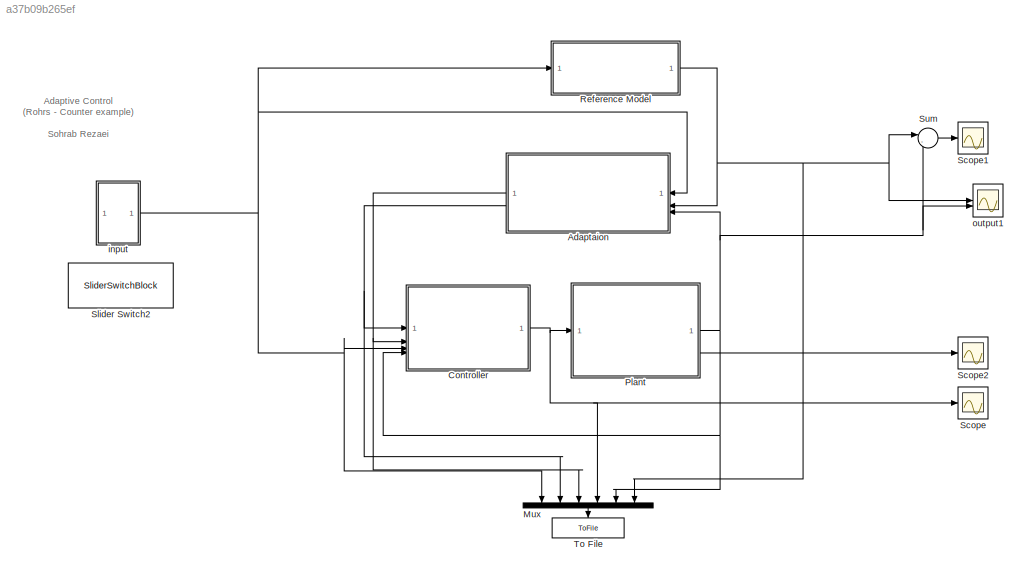
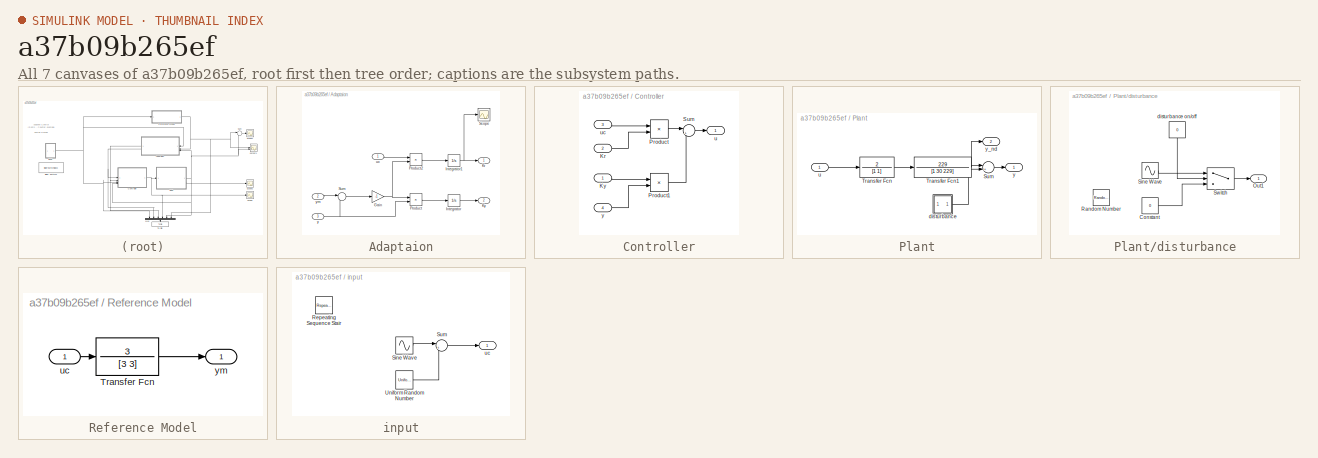
[diagram: thumbnail index - all 7 canvases of the model, root first then tree order]
MODEL slx_a37b09b265ef
KIND model
CONFIG AbsTol = auto
CONFIG EnableMultiTasking = off
CONFIG FixedStep = auto
CONFIG MaxStep = auto
CONFIG MinStep = auto
CONFIG RelTol = 1e-3
CONFIG SampleTimeConstraint = Unconstrained
CONFIG SolverName = VariableStepAuto
CONFIG StartTime = 0.0
CONFIG StopTime = 600
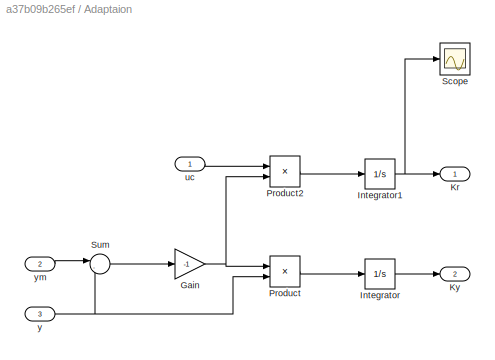
BLOCK [SubSystem] Adaptaion
  NameLocation = top
BLOCK [Gain] Adaptaion/Gain
  Gain = -1
BLOCK [Integrator] Adaptaion/Integrator
BLOCK [Integrator] Adaptaion/Integrator1
BLOCK [Outport] Adaptaion/Kr
BLOCK [Outport] Adaptaion/Ky
  Port = 2
BLOCK [Product] Adaptaion/Product
BLOCK [Product] Adaptaion/Product2
BLOCK [Scope] Adaptaion/Scope
  ActiveDisplayYMaximum = 4.56362
  ActiveDisplayYMinimum = -0.50707
  DataLoggingVariableName = ScopeData3
  Floating = off
  GraphicalSettings = {"GraphicalSettings":{"LegacySettings":true,"Style":{"Style":{"AxesColor":"[0 0 0]","ChannelNames":[""],"ColorOrder":"[1 1 0.0666666666666667;0.0745098039215686 0.623529411764706 1;1 0.411764705882353 0.16078431372549;0.392156862745098 0.831372549019608 0.0745098039215686;0.717647058823529 0.274509803921569 1;0.0588235294117647 1 1;1 0.0745098039215686 0.650980392156863]","CurrentConfiguration":"e...<+425ch>
  MultipleDisplayCache = [{"MaxYLimMag":4.56362,"MaxYLimReal":4.56362,"MinYLimMag":0,"MinYLimReal":-0.50707,"PlotAsMagnitudePhase":false,"ShowGrid":true,"ShowLegend":false,"Title":"%<SignalLabel>","YLabel":""}]
  NumInputPorts = 1
  WasSavedAsWebScope = on
BLOCK [Sum] Adaptaion/Sum
  Inputs = |-+
BLOCK [Inport] Adaptaion/uc
  NameLocation = top
BLOCK [Inport] Adaptaion/y
  NameLocation = top
  Port = 3
BLOCK [Inport] Adaptaion/ym
  NameLocation = top
  Port = 2
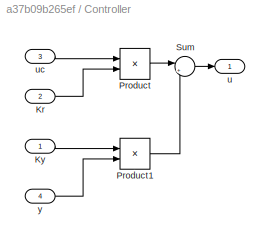
BLOCK [SubSystem] Controller
BLOCK [Inport] Controller/Kr
  Port = 2
BLOCK [Inport] Controller/Ky
BLOCK [Product] Controller/Product
  RndMeth = Zero
BLOCK [Product] Controller/Product1
  RndMeth = Zero
BLOCK [Sum] Controller/Sum
  Inputs = |++
BLOCK [Outport] Controller/u
BLOCK [Inport] Controller/uc
  Port = 3
BLOCK [Inport] Controller/y
  Port = 4
BLOCK [Mux] Mux
  DisplayOption = bar
  Inputs = 6
  NameLocation = left
BLOCK [SubSystem] Plant
BLOCK [Sum] Plant/Sum
  Inputs = |++
BLOCK [TransferFcn] Plant/Transfer Fcn
  Denominator = [1 1]
  Numerator = 2
BLOCK [TransferFcn] Plant/Transfer Fcn1
  Denominator = [1 30 229]
  Numerator = 229
BLOCK [SubSystem] Plant/disturbance
  NameLocation = right
BLOCK [Constant] Plant/disturbance/Constant
  Value = 0
BLOCK [Outport] Plant/disturbance/Out1
BLOCK [RandomNumber] Plant/disturbance/Random Number
  SampleTime = 0.1
BLOCK [Sin] Plant/disturbance/Sine Wave
  Amplitude = 0.01
  Frequency = 10
  SampleTime = 0
BLOCK [Switch] Plant/disturbance/Switch
  Criteria = u2 > Threshold
  InputSameDT = off
  SaturateOnIntegerOverflow = off
BLOCK [Constant] Plant/disturbance/disturbance on//off
  NameLocation = left
  Value = 0
BLOCK [Inport] Plant/u
BLOCK [Outport] Plant/y
BLOCK [Outport] Plant/y_nd
  Port = 2
BLOCK [SubSystem] Reference Model
BLOCK [TransferFcn] Reference Model/Transfer Fcn
  Denominator = [3 3]
  Numerator = 3
BLOCK [Inport] Reference Model/uc
BLOCK [Outport] Reference Model/ym
BLOCK [Scope] Scope
  ActiveDisplayYMaximum = 1.08696
  ActiveDisplayYMinimum = 0.21748
  DataLoggingVariableName = ScopeData2
  Floating = off
  GraphicalSettings = {"GraphicalSettings":{"LegacySettings":true,"Style":{"AxesScalingProperties":{"ScaleAxesLimitsAtStop":false},"Style":{"AxesColor":"[1 1 1]","BackgroundColor":"[1 1 1]","ChannelNames":[""],"ColorOrder":"[0 0.447058823529412 0.741176470588235;0.850980392156863 0.325490196078431 0.0980392156862745;0.929411764705882 0.694117647058824 0.125490196078431;0.494117647058824 0.184313725490196 0.556862745098...<+593ch>  <repeated x3 — deduplicated; at blocks: Scope, Scope1, Scope2>
  MultipleDisplayCache = [{"MaxYLimMag":1.08696,"MaxYLimReal":1.08696,"MinYLimMag":0.21748,"MinYLimReal":0.21748,"PlotAsMagnitudePhase":false,"ShowGrid":true,"ShowLegend":false,"Title":"%<SignalLabel>","YLabel":""}]
  NumInputPorts = 1
  WasSavedAsWebScope = on
BLOCK [Scope] Scope1
  ActiveDisplayYMaximum = 2.29564
  ActiveDisplayYMinimum = -2.37271
  DataLoggingVariableName = ScopeData1
  Floating = off
  MultipleDisplayCache = [{"MaxYLimMag":2.37271,"MaxYLimReal":2.29564,"MinYLimMag":0,"MinYLimReal":-2.37271,"PlotAsMagnitudePhase":false,"ShowGrid":true,"ShowLegend":false,"Title":"%<SignalLabel>","YLabel":""}]
  NumInputPorts = 1
  WasSavedAsWebScope = on
BLOCK [Scope] Scope2
  ActiveDisplayYMaximum = 2.30162
  ActiveDisplayYMinimum = -0.55626
  DataLoggingVariableName = ScopeData2
  Floating = off
  MultipleDisplayCache = [{"MaxYLimMag":2.30162,"MaxYLimReal":2.30162,"MinYLimMag":0,"MinYLimReal":-0.55626,"PlotAsMagnitudePhase":false,"ShowGrid":true,"ShowLegend":false,"Title":"%<SignalLabel>","YLabel":""}]
  NumInputPorts = 1
  WasSavedAsWebScope = on
BLOCK [SliderSwitchBlock] Slider Switch2
BLOCK [Sum] Sum
  Inputs = |-+
BLOCK [ToFile] To File
  Filename = Rohrs.mat
  MatrixName = data
  NameLocation = left
BLOCK [SubSystem] input
BLOCK [Reference] input/Repeating Sequence Stair  REF=simulink/Sources/Repeating
Sequence
Stair
  SourceBlock = simulink/Sources/Repeating\nSequence\nStair
  SourceType = Repeating Sequence Stair
BLOCK [Sin] input/Sine Wave
  Amplitude = 1.85
  Bias = 0.3
  Frequency = 8
  SampleTime = 0
BLOCK [Sum] input/Sum
  Inputs = |++
BLOCK [UniformRandomNumber] input/Uniform Random Number
  Maximum = 0.01
  Minimum = -0.01
  SampleTime = 0.1
BLOCK [Outport] input/uc
BLOCK [Scope] output1
  ActiveDisplayYMaximum = 2.87888
  ActiveDisplayYMinimum = -2.35814
  DataLoggingVariableName = ScopeData3
  Floating = off
  GraphicalSettings = {"GraphicalSettings":{"LegacySettings":true,"Style":{"AxesScalingProperties":{"ScaleAxesLimitsAtStop":false},"Style":{"AxesColor":"[1 1 1]","BackgroundColor":"[1 1 1]","ChannelNames":[""],"ColorOrder":"[0 0.447058823529412 0.741176470588235;0.850980392156863 0.325490196078431 0.0980392156862745;0.929411764705882 0.694117647058824 0.125490196078431;0.494117647058824 0.184313725490196 0.556862745098...<+627ch>
  MultipleDisplayCache = [{"MaxYLimMag":2.87888,"MaxYLimReal":2.87888,"MinYLimMag":0,"MinYLimReal":-2.35814,"PlotAsMagnitudePhase":false,"ShowGrid":true,"ShowLegend":false,"Title":"%<SignalLabel>","YLabel":""}]
  NumInputPorts = 2
  WasSavedAsWebScope = on
ANNOTATION (root): Adaptive Control (Rohrs - Counter example) Sohrab Rezaei
NET Adaptaion/Gain:1 -> Adaptaion/Product2:2, Adaptaion/Product:1
NET Adaptaion/Integrator1:1 -> Adaptaion/Kr:1, Adaptaion/Scope:1
LINE Adaptaion/Integrator:1 -> Adaptaion/Ky:1
LINE Adaptaion/Product2:1 -> Adaptaion/Integrator1:1
LINE Adaptaion/Product:1 -> Adaptaion/Integrator:1
LINE Adaptaion/Sum:1 -> Adaptaion/Gain:1
LINE Adaptaion/uc:1 -> Adaptaion/Product2:1
NET Adaptaion/y:1 -> Adaptaion/Product:2, Adaptaion/Sum:2
LINE Adaptaion/ym:1 -> Adaptaion/Sum:1
NET Adaptaion:1 -> Controller:2, Mux:3
NET Adaptaion:2 -> Controller:1, Mux:2
LINE Controller/Kr:1 -> Controller/Product:2
LINE Controller/Ky:1 -> Controller/Product1:1
LINE Controller/Product1:1 -> Controller/Sum:2
LINE Controller/Product:1 -> Controller/Sum:1
LINE Controller/Sum:1 -> Controller/u:1
LINE Controller/uc:1 -> Controller/Product:1
LINE Controller/y:1 -> Controller/Product1:2
NET Controller:1 -> Mux:4, Plant:1, Scope:1
LINE Mux:1 -> To File:1
LINE Plant/Sum:1 -> Plant/y:1
NET Plant/Transfer Fcn1:1 -> Plant/Sum:1, Plant/y_nd:1
LINE Plant/Transfer Fcn:1 -> Plant/Transfer Fcn1:1
LINE Plant/disturbance/Constant:1 -> Plant/disturbance/Switch:3
LINE Plant/disturbance/Sine Wave:1 -> Plant/disturbance/Switch:1
LINE Plant/disturbance/Switch:1 -> Plant/disturbance/Out1:1
LINE Plant/disturbance/disturbance on//off:1 -> Plant/disturbance/Switch:2
LINE Plant/disturbance:1 -> Plant/Sum:2
LINE Plant/u:1 -> Plant/Transfer Fcn:1
NET Plant:1 -> Adaptaion:3, Controller:4, Mux:5, Sum:2, output1:2
LINE Plant:2 -> Scope2:1
LINE Reference Model/Transfer Fcn:1 -> Reference Model/ym:1
LINE Reference Model/uc:1 -> Reference Model/Transfer Fcn:1
NET Reference Model:1 -> Adaptaion:2, Mux:6, Sum:1, output1:1
LINE Sum:1 -> Scope1:1
LINE input/Sine Wave:1 -> input/Sum:1
LINE input/Sum:1 -> input/uc:1
LINE input/Uniform Random Number:1 -> input/Sum:2
NET input:1 -> Adaptaion:1, Controller:3, Mux:1, Reference Model:1
note: NET lines group one-source signal fan-out (src -> all destinations, sorted); 1:1 wires keep LINE
